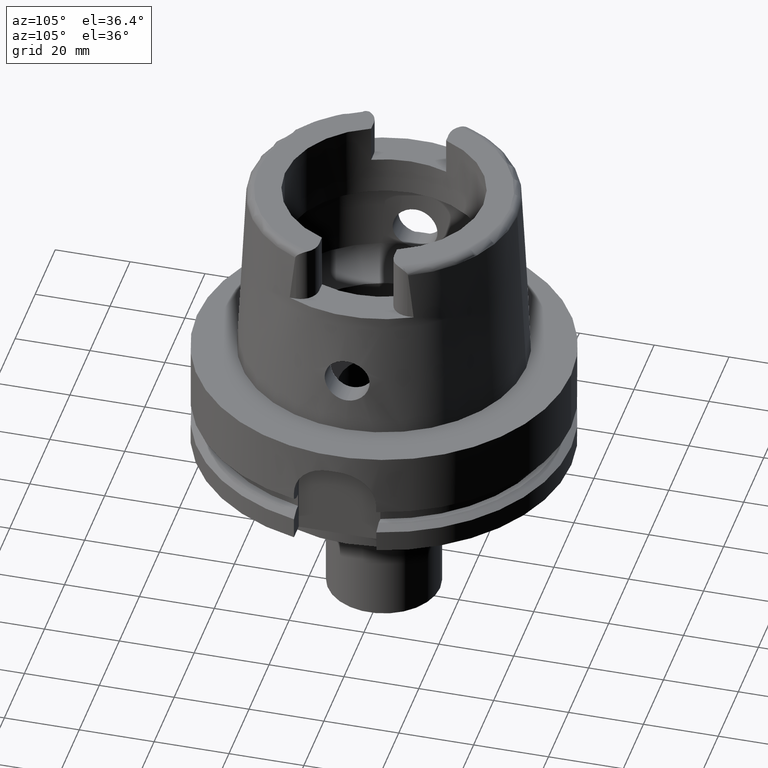
[diagram: clean part render]
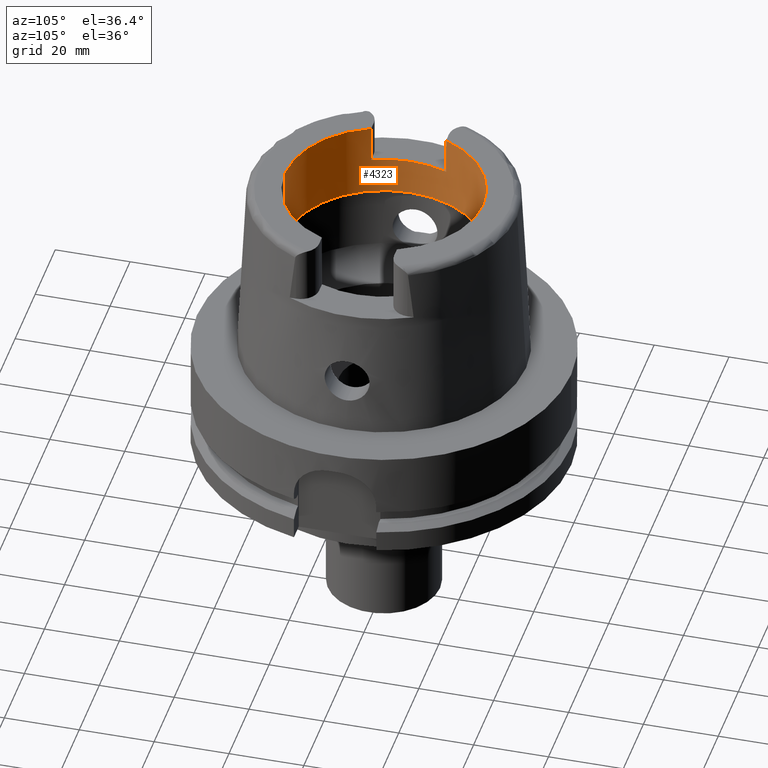
[diagram: same view with one face highlighted and labeled with its STEP entity id]
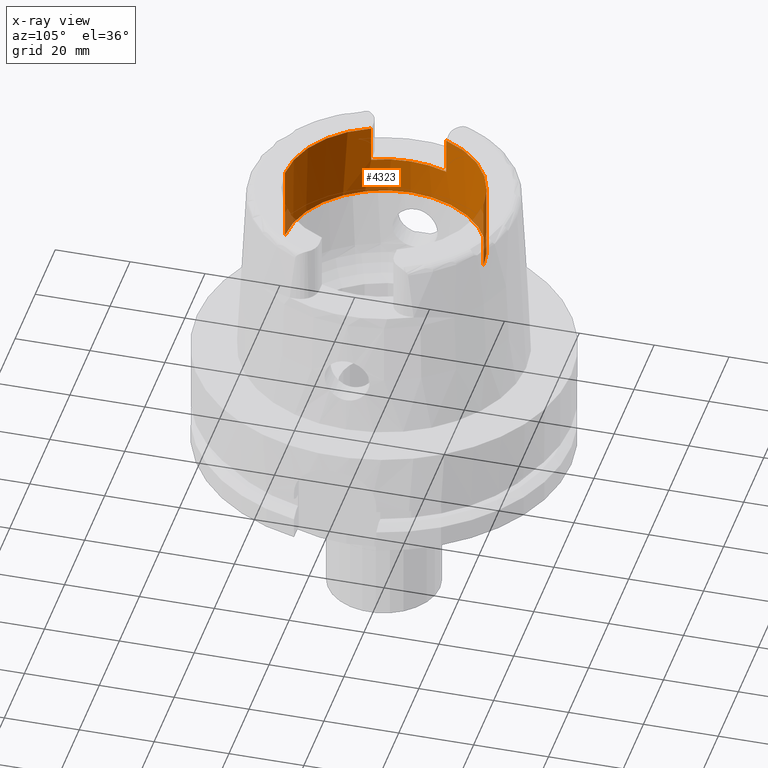
[diagram: x-ray of the same camera — body ghosted, the highlighted face saturated]
A machine part, auxiliary view. The second image highlights one B-rep face of the part: STEP entity #4323.
The next image is the same camera in x-ray: the body ghosted, the highlighted face saturated — about 4% of this face is hidden behind the body in this view.
In plain terms, the highlighted cylindrical surface (partial cylindrical patch) has radius 26.5 mm, axis along (0, 0, 1).
Its self-contained STEP definition (entity closure, byte-faithful):
#9 = LINE ( 'NONE', #36, #1578 ) ;
#36 = CARTESIAN_POINT ( 'NONE',  ( -24.53670515777999839, 10.00999999999999979, 40.00000000000000000 ) ) ;
#134 = VERTEX_POINT ( 'NONE', #2977 ) ;
#157 = ORIENTED_EDGE ( 'NONE', *, *, #5305, .F. ) ;
#206 = LINE ( 'NONE', #4916, #3324 ) ;
#360 = AXIS2_PLACEMENT_3D ( 'NONE', #857, #2159, #3878 ) ;
#585 = VERTEX_POINT ( 'NONE', #4240 ) ;
#607 = DIRECTION ( 'NONE',  ( 0.0000000000000000000, 0.0000000000000000000, 1.000000000000000000 ) ) ;
#827 = ORIENTED_EDGE ( 'NONE', *, *, #4817, .T. ) ;
#857 = CARTESIAN_POINT ( 'NONE',  ( 0.0000000000000000000, 0.0000000000000000000, 40.00000000000000000 ) ) ;
#878 = DIRECTION ( 'NONE',  ( 0.0000000000000000000, 0.0000000000000000000, 1.000000000000000000 ) ) ;
#936 = VERTEX_POINT ( 'NONE', #4472 ) ;
#1189 = CARTESIAN_POINT ( 'NONE',  ( 0.0000000000000000000, 26.50000000000000000, 30.00337567297000163 ) ) ;
#1265 = AXIS2_PLACEMENT_3D ( 'NONE', #3437, #4833, #1747 ) ;
#1350 = VERTEX_POINT ( 'NONE', #2600 ) ;
#1428 = DIRECTION ( 'NONE',  ( 0.0000000000000000000, 0.0000000000000000000, -1.000000000000000000 ) ) ;
#1537 = DIRECTION ( 'NONE',  ( -0.9259134021805098813, -0.3777358490566039562, 0.0000000000000000000 ) ) ;
#1561 = EDGE_CURVE ( 'NONE', #2421, #585, #2211, .T. ) ;
#1578 = VECTOR ( 'NONE', #878, 1000.000000000000000 ) ;
#1684 = CARTESIAN_POINT ( 'NONE',  ( -24.53670515777999839, 10.00999999999999979, 40.00000000000000000 ) ) ;
#1723 = FACE_OUTER_BOUND ( 'NONE', #5588, .T. ) ;
#1747 = DIRECTION ( 'NONE',  ( 0.0000000000000000000, 1.000000000000000000, 0.0000000000000000000 ) ) ;
#1811 = VECTOR ( 'NONE', #5355, 1000.000000000000000 ) ;
#1875 = DIRECTION ( 'NONE',  ( 0.0000000000000000000, -1.000000000000000000, 0.0000000000000000000 ) ) ;
#2158 = ORIENTED_EDGE ( 'NONE', *, *, #1561, .T. ) ;
#2159 = DIRECTION ( 'NONE',  ( 0.0000000000000000000, 0.0000000000000000000, 1.000000000000000000 ) ) ;
#2211 = CIRCLE ( 'NONE', #5368, 26.50000000000000000 ) ;
#2224 = VERTEX_POINT ( 'NONE', #3527 ) ;
#2307 = CARTESIAN_POINT ( 'NONE',  ( -24.53670515777999839, -10.00999999999999979, 50.00000000000000000 ) ) ;
#2421 = VERTEX_POINT ( 'NONE', #3123 ) ;
#2600 = CARTESIAN_POINT ( 'NONE',  ( -24.53670515777999839, -10.00999999999999979, 50.00000000000000000 ) ) ;
#2624 = AXIS2_PLACEMENT_3D ( 'NONE', #3959, #607, #4937 ) ;
#2646 = ORIENTED_EDGE ( 'NONE', *, *, #5171, .T. ) ;
#2812 = VERTEX_POINT ( 'NONE', #1684 ) ;
#2814 = ORIENTED_EDGE ( 'NONE', *, *, #4930, .T. ) ;
#2907 = DIRECTION ( 'NONE',  ( 0.0000000000000000000, 0.0000000000000000000, 1.000000000000000000 ) ) ;
#2977 = CARTESIAN_POINT ( 'NONE',  ( -24.53670515777999839, 10.00999999999999979, 50.00000000000000000 ) ) ;
#3069 = CIRCLE ( 'NONE', #2624, 26.50000000000000000 ) ;
#3123 = CARTESIAN_POINT ( 'NONE',  ( 0.0000000000000000000, -26.50000000000000000, 30.00337567297000163 ) ) ;
#3145 = CARTESIAN_POINT ( 'NONE',  ( 0.0000000000000000000, -26.50000000000000000, 50.00000000000000000 ) ) ;
#3223 = LINE ( 'NONE', #1189, #3917 ) ;
#3324 = VECTOR ( 'NONE', #3652, 1000.000000000000000 ) ;
#3410 = CYLINDRICAL_SURFACE ( 'NONE', #1265, 26.50000000000000000 ) ;
#3432 = AXIS2_PLACEMENT_3D ( 'NONE', #3697, #2907, #1537 ) ;
#3437 = CARTESIAN_POINT ( 'NONE',  ( 0.0000000000000000000, 0.0000000000000000000, -74.21500000000000341 ) ) ;
#3527 = CARTESIAN_POINT ( 'NONE',  ( 0.0000000000000000000, 26.50000000000000000, 50.00000000000000000 ) ) ;
#3652 = DIRECTION ( 'NONE',  ( 0.0000000000000000000, 4.406108640804999471E-14, 1.000000000000000000 ) ) ;
#3688 = EDGE_CURVE ( 'NONE', #1350, #936, #5385, .T. ) ;
#3697 = CARTESIAN_POINT ( 'NONE',  ( 0.0000000000000000000, 0.0000000000000000000, 50.00000000000000000 ) ) ;
#3878 = DIRECTION ( 'NONE',  ( -0.9259134021805098813, 0.3777358490566039562, 0.0000000000000000000 ) ) ;
#3917 = VECTOR ( 'NONE', #4642, 1000.000000000000000 ) ;
#3959 = CARTESIAN_POINT ( 'NONE',  ( 0.0000000000000000000, 0.0000000000000000000, 50.00000000000000000 ) ) ;
#4240 = CARTESIAN_POINT ( 'NONE',  ( 0.0000000000000000000, 26.50000000000000000, 30.00337567297000163 ) ) ;
#4299 = ORIENTED_EDGE ( 'NONE', *, *, #4558, .F. ) ;
#4323 = ADVANCED_FACE ( 'NONE', ( #1723 ), #3410, .F. ) ;
#4472 = CARTESIAN_POINT ( 'NONE',  ( -24.53670515777999839, -10.00999999999999979, 40.00000000000000000 ) ) ;
#4558 = EDGE_CURVE ( 'NONE', #2421, #4986, #206, .T. ) ;
#4639 = ORIENTED_EDGE ( 'NONE', *, *, #3688, .F. ) ;
#4642 = DIRECTION ( 'NONE',  ( 0.0000000000000000000, -4.406108640804999471E-14, 1.000000000000000000 ) ) ;
#4817 = EDGE_CURVE ( 'NONE', #2812, #936, #5243, .T. ) ;
#4833 = DIRECTION ( 'NONE',  ( 0.0000000000000000000, 0.0000000000000000000, 1.000000000000000000 ) ) ;
#4916 = CARTESIAN_POINT ( 'NONE',  ( 0.0000000000000000000, -26.50000000000000000, 30.00337567297000163 ) ) ;
#4930 = EDGE_CURVE ( 'NONE', #2224, #134, #3069, .T. ) ;
#4937 = DIRECTION ( 'NONE',  ( 0.0000000000000000000, 1.000000000000000000, 0.0000000000000000000 ) ) ;
#4986 = VERTEX_POINT ( 'NONE', #3145 ) ;
#5004 = EDGE_CURVE ( 'NONE', #1350, #4986, #5162, .T. ) ;
#5122 = ORIENTED_EDGE ( 'NONE', *, *, #5004, .T. ) ;
#5162 = CIRCLE ( 'NONE', #3432, 26.50000000000000711 ) ;
#5171 = EDGE_CURVE ( 'NONE', #585, #2224, #3223, .T. ) ;
#5243 = CIRCLE ( 'NONE', #360, 26.50000000000000711 ) ;
#5246 = CARTESIAN_POINT ( 'NONE',  ( 0.0000000000000000000, 0.0000000000000000000, 30.00337567297000163 ) ) ;
#5305 = EDGE_CURVE ( 'NONE', #2812, #134, #9, .T. ) ;
#5355 = DIRECTION ( 'NONE',  ( 0.0000000000000000000, 0.0000000000000000000, -1.000000000000000000 ) ) ;
#5368 = AXIS2_PLACEMENT_3D ( 'NONE', #5246, #1428, #1875 ) ;
#5385 = LINE ( 'NONE', #2307, #1811 ) ;
#5588 = EDGE_LOOP ( 'NONE', ( #4639, #5122, #4299, #2158, #2646, #2814, #157, #827 ) ) ;